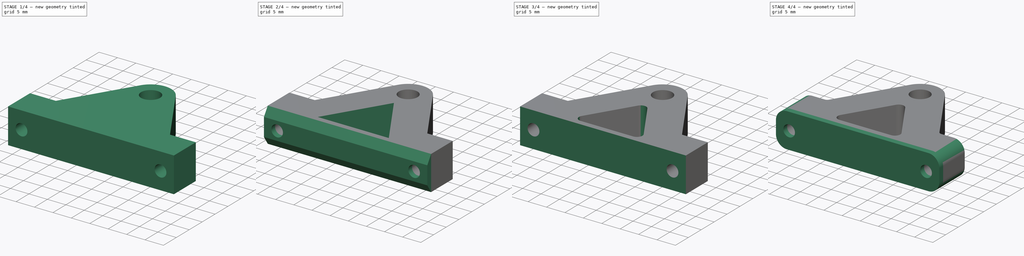
[diagram: build sequence overview — one tinted view per stage of 4, left to right]
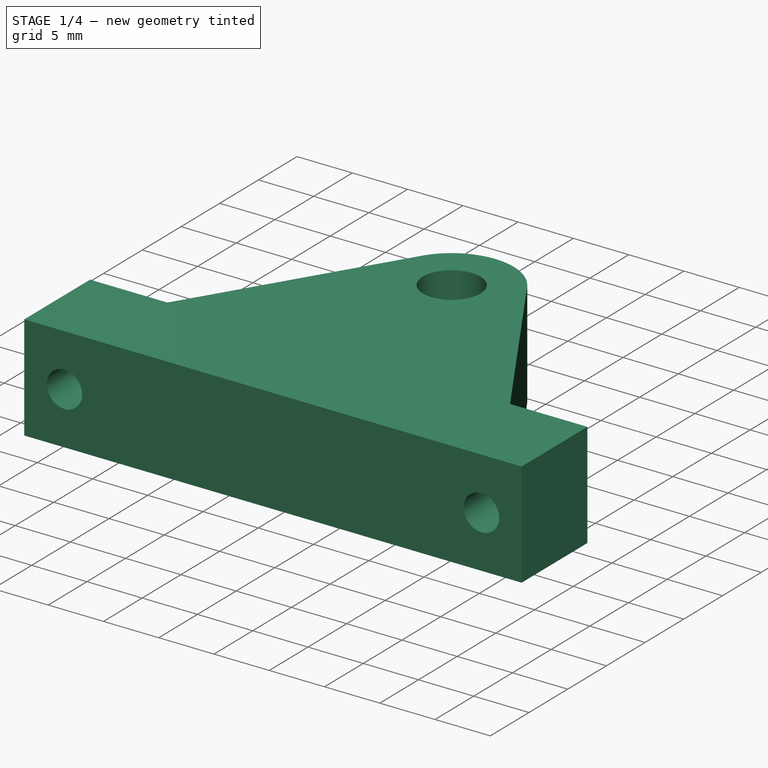
[diagram: stage 1 of 4 — iso view after this stage's code; geometry added in this stage tinted green]
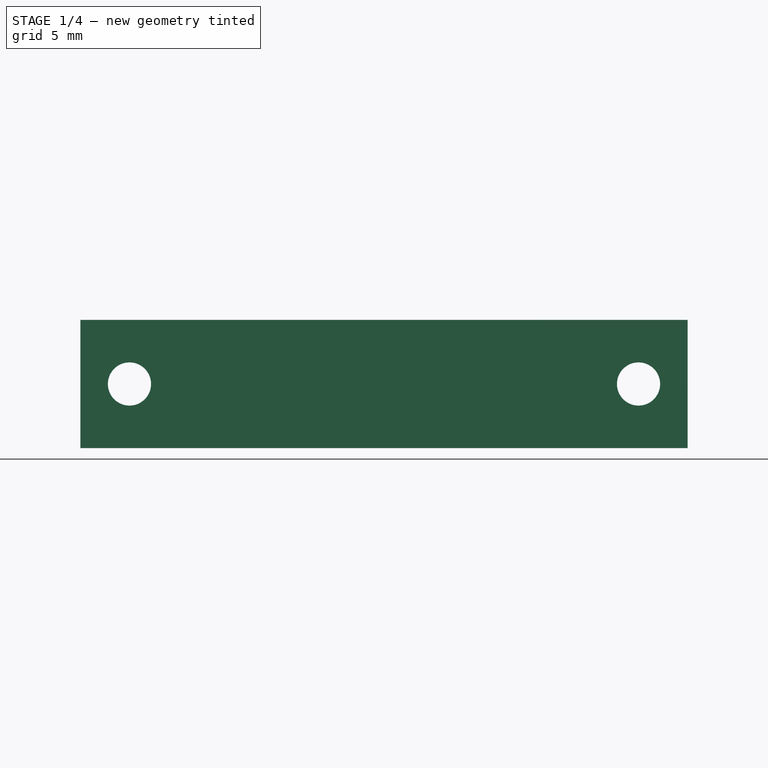
[diagram: stage 1 of 4 — front view after this stage's code; geometry added in this stage tinted green]
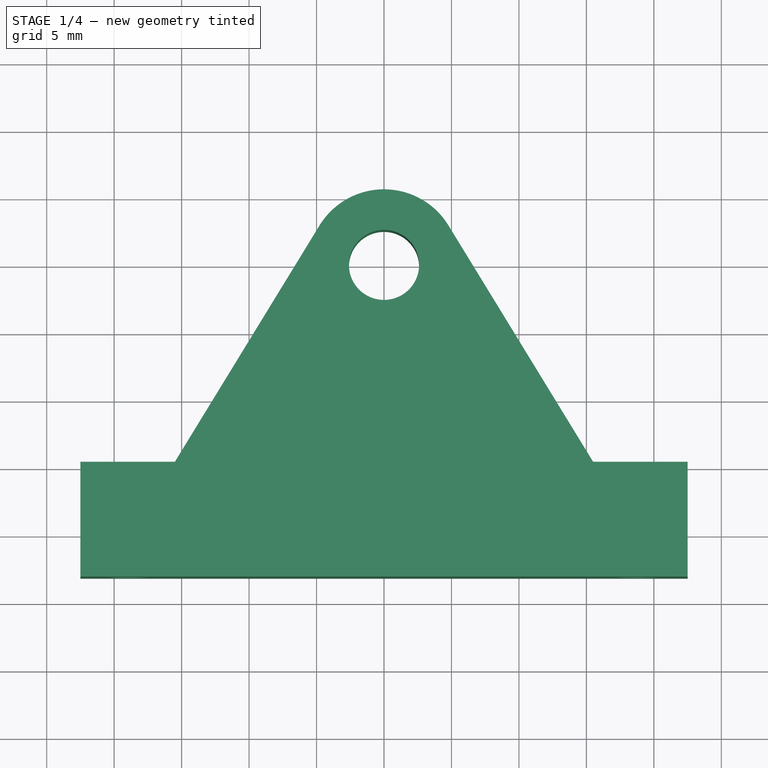
[diagram: stage 1 of 4 — top view after this stage's code; geometry added in this stage tinted green]
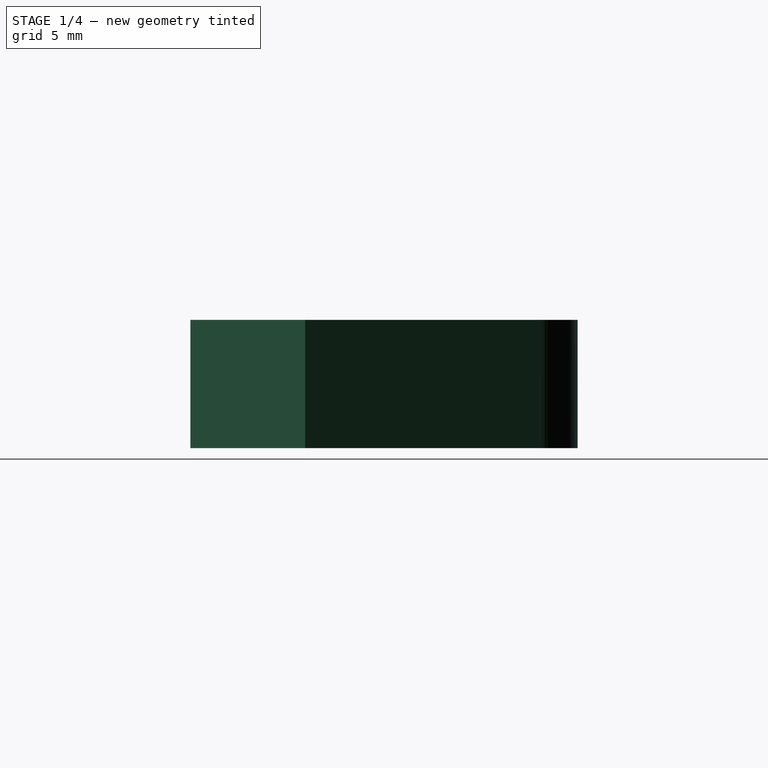
[diagram: stage 1 of 4 — right view after this stage's code; geometry added in this stage tinted green]
FCSTD DOCUMENT  (FreeCAD 0.21R33771 (Git))
Label: suporte-45-P2-M5-horizontal-plano
License: All rights reserved
LicenseURL: http://en.wikipedia.org/wiki/All_rights_reserved
objects: PartDesign::Pocket×5, Sketcher::SketchObject×4, PartDesign::Pad×3, PartDesign::Fillet×3, PartDesign::Body×1
note: 27 computed .brp shape members not serialized (recipe doc carries the construction recipe); baked Part::Feature solids carry a one-line shape summary decoded from their .brp

FEATURE [Sketcher::SketchObject] Sketch
  FullyConstrained = true
  MapMode = 5
  Support = -> [XY_Plane]
  sketch-geometry (13):
    g0: Circle CenterX=0 CenterY=0 CenterZ=0 NormalX=0 NormalY=0 NormalZ=1 AngleXU=0 Radius=2.6
    g1: LineSegment StartX=22.5 StartY=-24.6 StartZ=0 EndX=-22.5 EndY=-24.6 EndZ=0
    g2: Circle CenterX=0 CenterY=0 CenterZ=0 NormalX=0 NormalY=0 NormalZ=1 AngleXU=0 Radius=5.6
    g3: LineSegment StartX=-22.5 StartY=-2.6 StartZ=0 EndX=22.5 EndY=-2.6 EndZ=0
    g4: GeomPoint X=0 Y=5.6 Z=0
    g5: GeomPoint X=0 Y=2.6 Z=0
    g6: ArcOfCircle CenterX=0 CenterY=0 CenterZ=0 NormalX=0 NormalY=0 NormalZ=1 AngleXU=0 Radius=5.6 StartAngle=0.549172 EndAngle=2.59242
    g7: LineSegment StartX=-22.5 StartY=-24.6 StartZ=0 EndX=-22.5 EndY=-14.6 EndZ=0
    g8: LineSegment StartX=-22.5 StartY=-14.6 StartZ=0 EndX=-15.5 EndY=-14.6 EndZ=0
    g9: LineSegment StartX=15.5 StartY=-14.6 StartZ=0 EndX=22.5 EndY=-14.6 EndZ=0
    g10: LineSegment StartX=22.5 StartY=-14.6 StartZ=0 EndX=22.5 EndY=-24.6 EndZ=0
    g11: LineSegment StartX=-15.5 StartY=-14.6 StartZ=0 EndX=-4.77656 EndY=2.92309 EndZ=0
    g12: LineSegment StartX=15.5 StartY=-14.6 StartZ=0 EndX=4.77656 EndY=2.92309 EndZ=0
  constraints (36):
    c: Coincident(g0,g-1)
    c: Diameter(g0) = 5.2
    c: Horizontal(g1)
    c: Coincident(g2,g0)
    c: Tangent(g3,g0)
    c: DistanceY(g1,g3) = 22
    c: DistanceX(g1,g1) = 45
    c: PointOnObject(g4,g-2)
    c: PointOnObject(g5,g0)
    c: PointOnObject(g5,g-2)
    c: PointOnObject(g4,g2)
    c: DistanceY(g5,g4) = 3
    c: Symmetric(g3,g3,g-2)
    c: PointOnObject(g6,g-1)
    c: Coincident(g1,g7)
    c: Vertical(g7)
    c: Coincident(g7,g8)
    c: Horizontal(g8)
    c: Horizontal(g9)
    c: Coincident(g9,g10)
    c: Vertical(g10)
    c: Coincident(g10,g1)
    c: Equal(g8,g9)
    c: DistanceX(g8,g8) = 7
    c: PointOnObject(g6,g-2)
    c: Equal(g6,g2)
    c: Horizontal(g6,g6)
    c: Vertical(g1,g3)
    c: Vertical(g1,g3)
    c: DistanceY(g7,g7) = 10
    c: Coincident(g11,g8)
    c: Coincident(g11,g6)
    c: Coincident(g12,g9)
    c: Coincident(g12,g6)
    c: Equal(g11,g12)
    c: Tangent(g11,g2)
FEATURE [PartDesign::Pad] Pad
  Direction = (0,0,1)
  Length = 9.5
  Length2 = 100
  Profile = -> Sketch
  ReferenceAxis = -> Sketch [N_Axis]
  Type = 0
FEATURE [Sketcher::SketchObject] Sketch001
  ExternalGeometry = -> [Pad]
  FullyConstrained = false
  MapMode = 5
  Placement = pos=(0,-14.6,0) rot=(0,0.707107,0.707107;3.14159rad)
  Support = -> [Pad]
  sketch-geometry (3):
    g0: Circle CenterX=-18.8652 CenterY=4.75 CenterZ=0 NormalX=0 NormalY=0 NormalZ=1 AngleXU=0 Radius=1.6
    g1: Circle CenterX=18.8652 CenterY=4.75 CenterZ=0 NormalX=0 NormalY=0 NormalZ=1 AngleXU=0 Radius=1.6
    g2: LineSegment StartX=-18.8652 StartY=4.75 StartZ=0 EndX=18.8652 EndY=4.75 EndZ=0
  constraints (6):
    c: Symmetric(g0,g1,g-2)
    c: Coincident(g2,g0)
    c: Coincident(g2,g1)
    c: Symmetric(g-3,g-3,g2)
    c: Equal(g1,g0)
    c: Diameter(g1) = 3.2
FEATURE [PartDesign::Pocket] Pocket
  BaseFeature = -> Pad
  Direction = (0,-1,2e-16)
  Length = 5
  Length2 = 5
  Profile = -> Sketch001
  ReferenceAxis = -> Sketch001 [N_Axis]
  Type = 1
FEATURE [PartDesign::Pocket] Pocket001
  BaseFeature = -> Pocket
  Direction = (0,1,0)
  Length = 1.5
  Length2 = 5
  Profile = -> Pocket [Face8]
  Type = 0
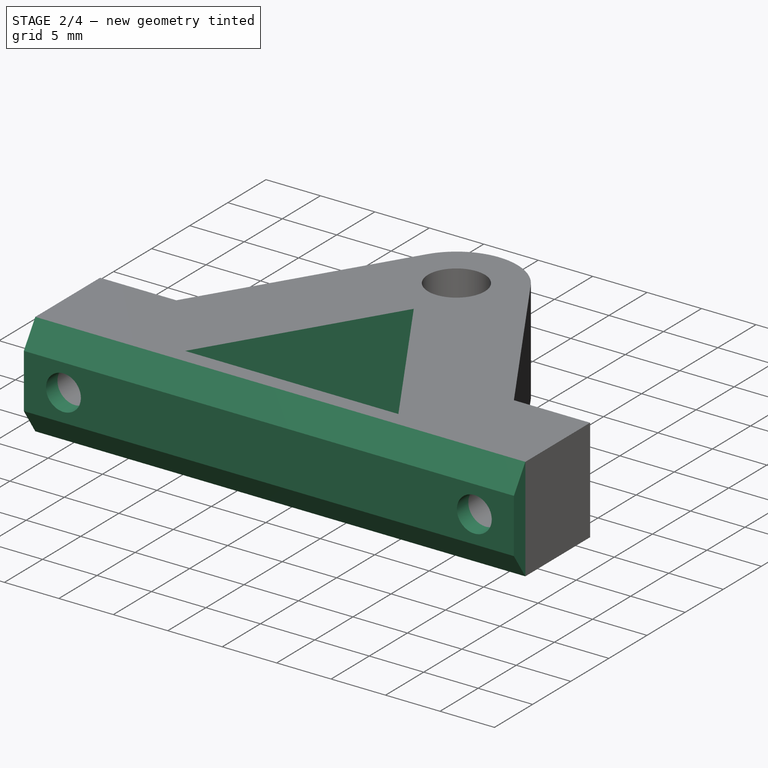
[diagram: stage 2 of 4 — iso view after this stage's code; geometry added in this stage tinted green]
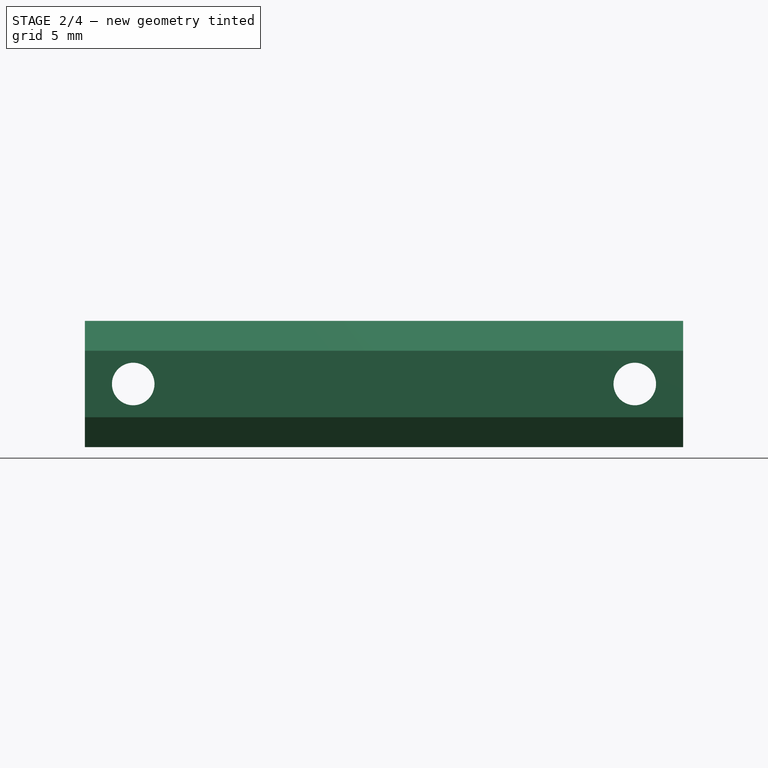
[diagram: stage 2 of 4 — front view after this stage's code; geometry added in this stage tinted green]
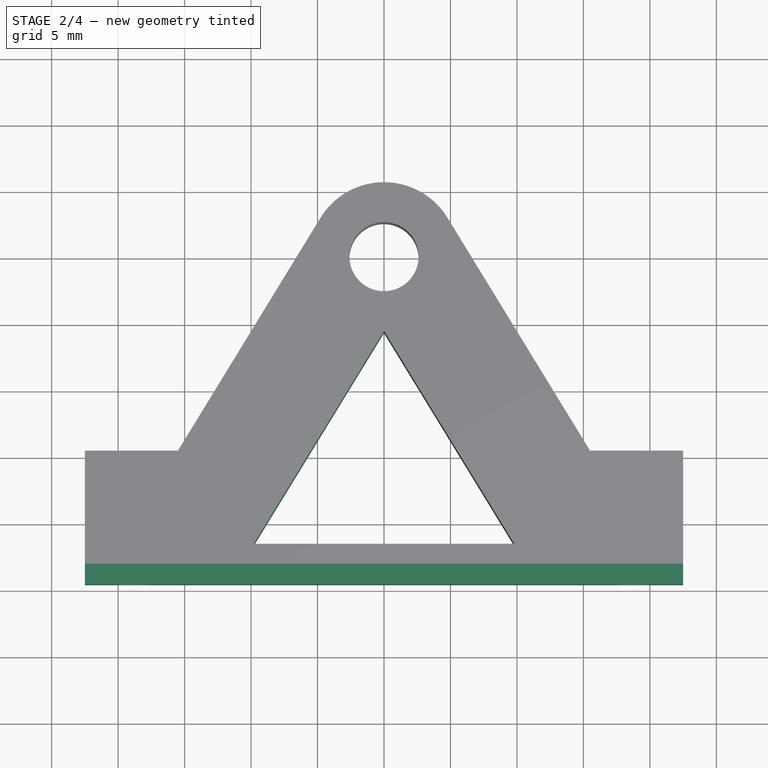
[diagram: stage 2 of 4 — top view after this stage's code; geometry added in this stage tinted green]
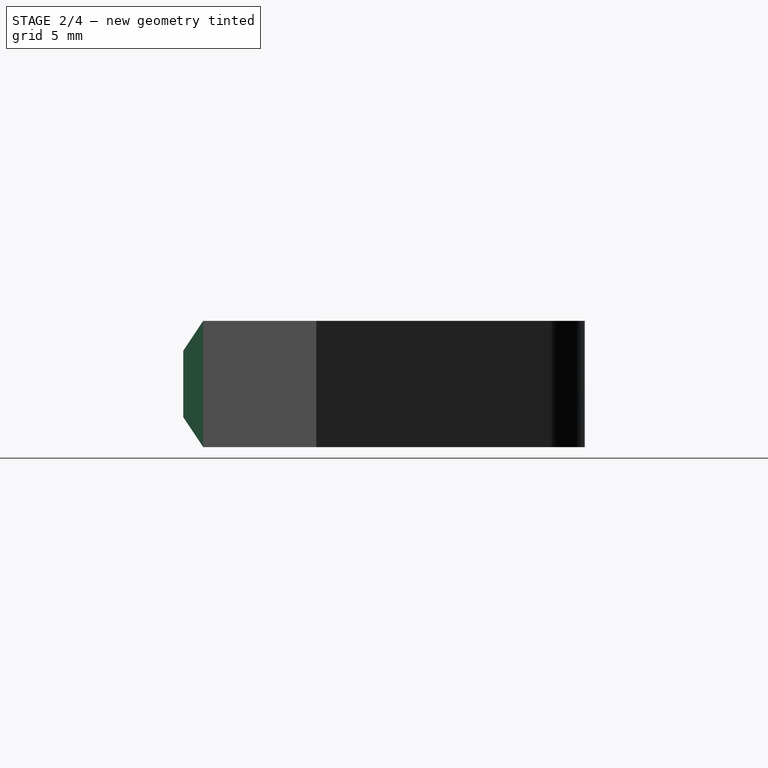
[diagram: stage 2 of 4 — right view after this stage's code; geometry added in this stage tinted green]
FEATURE [Sketcher::SketchObject] Sketch002
  ExternalGeometry = -> [Pocket001]
  FullyConstrained = true
  MapMode = 5
  Placement = pos=(-22.5,0,0) rot=(0.57735,-0.57735,-0.57735;2.0944rad)
  Support = -> [Pocket001]
  sketch-geometry (4):
    g0: LineSegment StartX=23.1 StartY=9.5 StartZ=0 EndX=23.1 EndY=0 EndZ=0
    g1: LineSegment StartX=23.1 StartY=0 StartZ=0 EndX=24.6 EndY=2.25 EndZ=0
    g2: LineSegment StartX=24.6 StartY=2.25 StartZ=0 EndX=24.6 EndY=7.25 EndZ=0
    g3: LineSegment StartX=24.6 StartY=7.25 StartZ=0 EndX=23.1 EndY=9.5 EndZ=0
  constraints (10):
    c: Coincident(g0,g1)
    c: Coincident(g1,g2)
    c: Vertical(g2)
    c: Coincident(g2,g3)
    c: Coincident(g3,g0)
    c: Coincident(g0,g-3)
    c: Coincident(g0,g-3)
    c: Equal(g3,g1)
    c: DistanceX(g0,g2) = 1.5
    c: DistanceY(g2,g2) = 5
FEATURE [PartDesign::Pad] Pad001
  BaseFeature = -> Pocket001
  Direction = (-1,0,0)
  Length = 10
  Length2 = 10
  Profile = -> Sketch002
  ReferenceAxis = -> Sketch002 [N_Axis]
  Type = 3
  UpToFace = -> Pocket001 [Face5]
FEATURE [PartDesign::Pocket] Pocket002
  BaseFeature = -> Pad001
  Direction = (0,-1,0)
  Length = 5
  Length2 = 5
  Profile = -> Pad001 [Face15,Face19]
  Type = 1
FEATURE [Sketcher::SketchObject] Sketch003
  ExternalGeometry = -> [Pocket002]
  FullyConstrained = true
  MapMode = 5
  Placement = pos=(0,0,0) rot=(1,0,0;3.14159rad)
  Support = -> [Pocket002]
  sketch-geometry (4):
    g0: LineSegment StartX=0 StartY=5.6 StartZ=0 EndX=-9.79137 EndY=21.6 EndZ=0
    g1: LineSegment StartX=-9.79137 StartY=21.6 StartZ=0 EndX=9.79137 EndY=21.6 EndZ=0
    g2: LineSegment StartX=9.79137 StartY=21.6 StartZ=0 EndX=0 EndY=5.6 EndZ=0
    g3: GeomPoint X=0 Y=2.6 Z=0
  constraints (10):
    c: PointOnObject(g0,g-2)
    c: Coincident(g0,g1)
    c: Coincident(g1,g2)
    c: Coincident(g2,g0)
    c: Symmetric(g0,g1,g-2)
    c: PointOnObject(g3,g-5)
    c: PointOnObject(g3,g-2)
    c: DistanceY(g3,g0) = 3
    c: Parallel(g-4,g0)
    c: DistanceY(g0,g-6) = 3
FEATURE [PartDesign::Pocket] Pocket003
  BaseFeature = -> Pocket002
  Direction = (0,0,1)
  Length = 5
  Length2 = 5
  Profile = -> Sketch003
  ReferenceAxis = -> Sketch003 [N_Axis]
  Type = 1
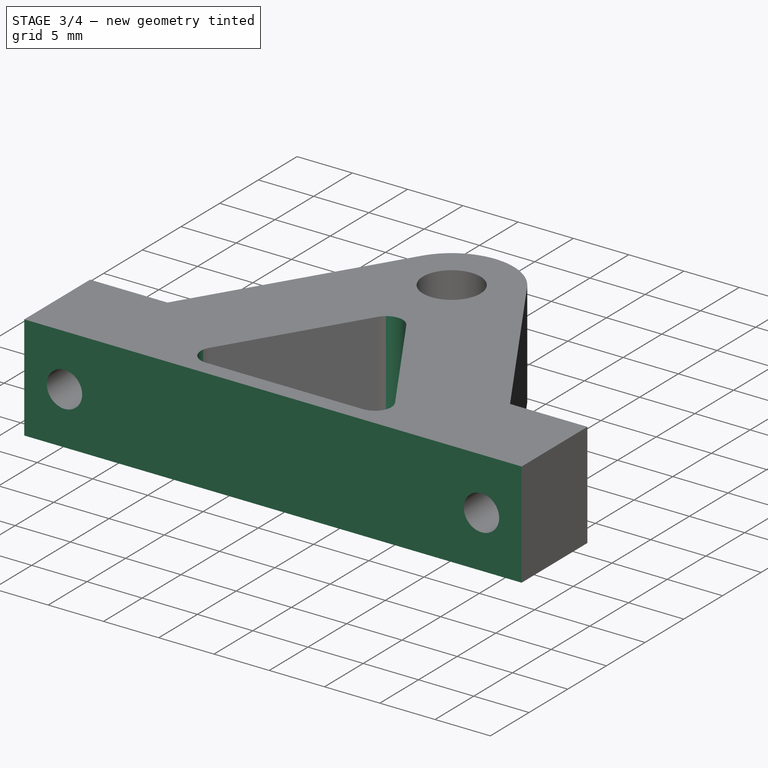
[diagram: stage 3 of 4 — iso view after this stage's code; geometry added in this stage tinted green]
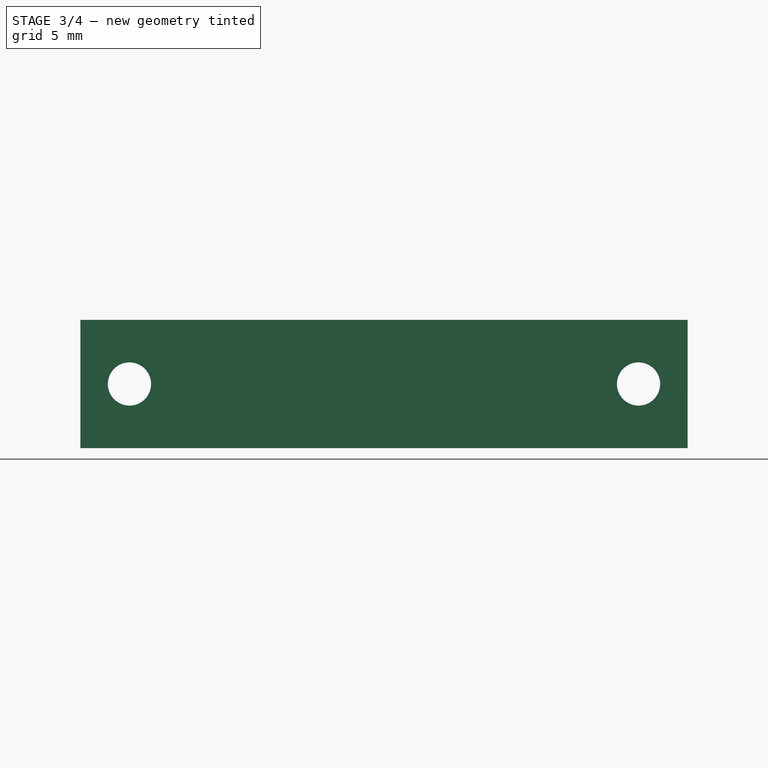
[diagram: stage 3 of 4 — front view after this stage's code; geometry added in this stage tinted green]
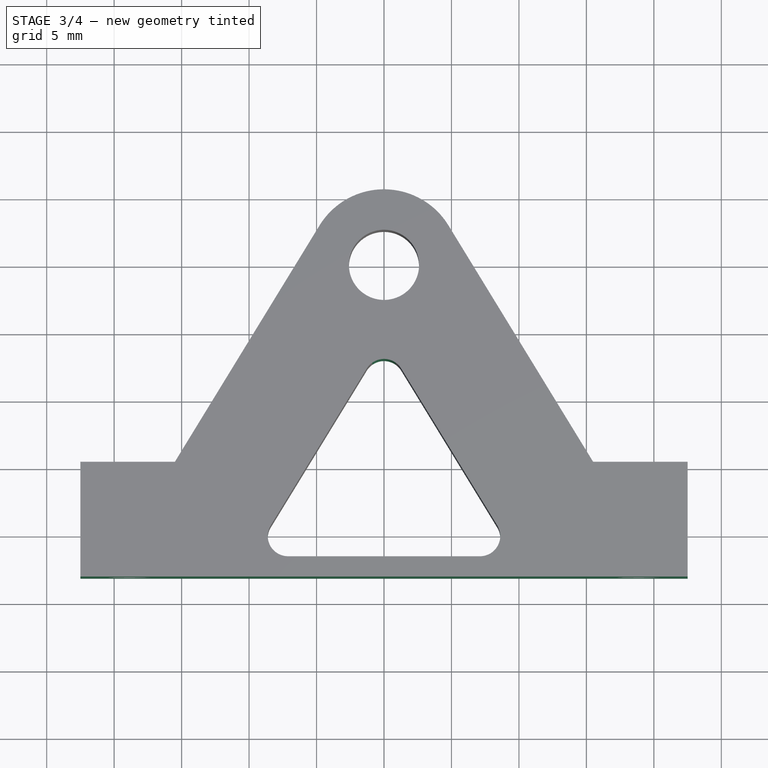
[diagram: stage 3 of 4 — top view after this stage's code; geometry added in this stage tinted green]
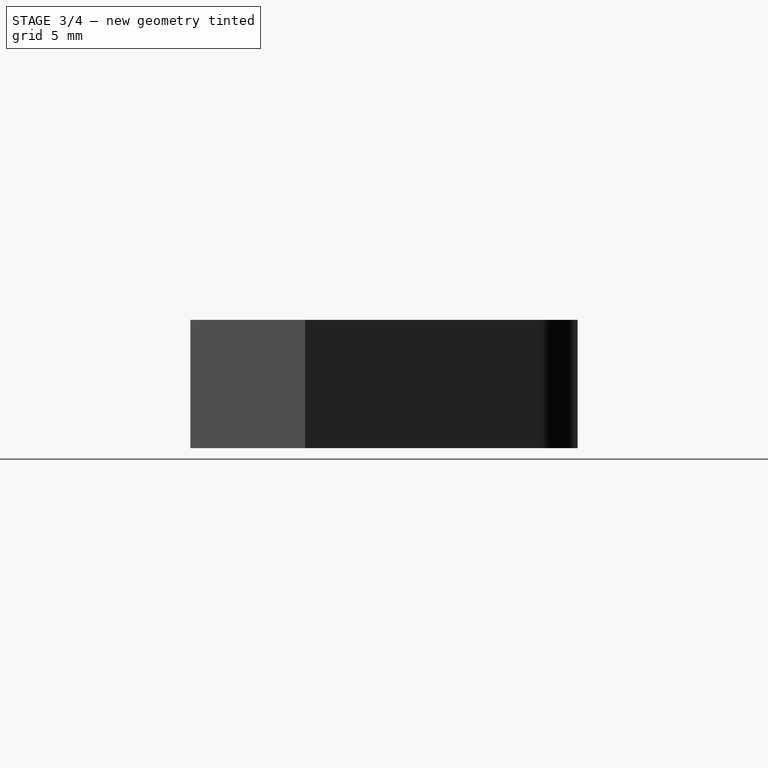
[diagram: stage 3 of 4 — right view after this stage's code; geometry added in this stage tinted green]
FEATURE [PartDesign::Fillet] Fillet
  Base = -> Pocket003 [Edge42,Edge40,Edge41]
  BaseFeature = -> Pocket003
  Radius = 1.5
  SupportTransform = false
  UseAllEdges = false
FEATURE [PartDesign::Pocket] Pocket004
  BaseFeature = -> Fillet
  Direction = (-1,0,0)
  Length = 5
  Length2 = 5
  Profile = -> Fillet [Face19]
  Type = 1
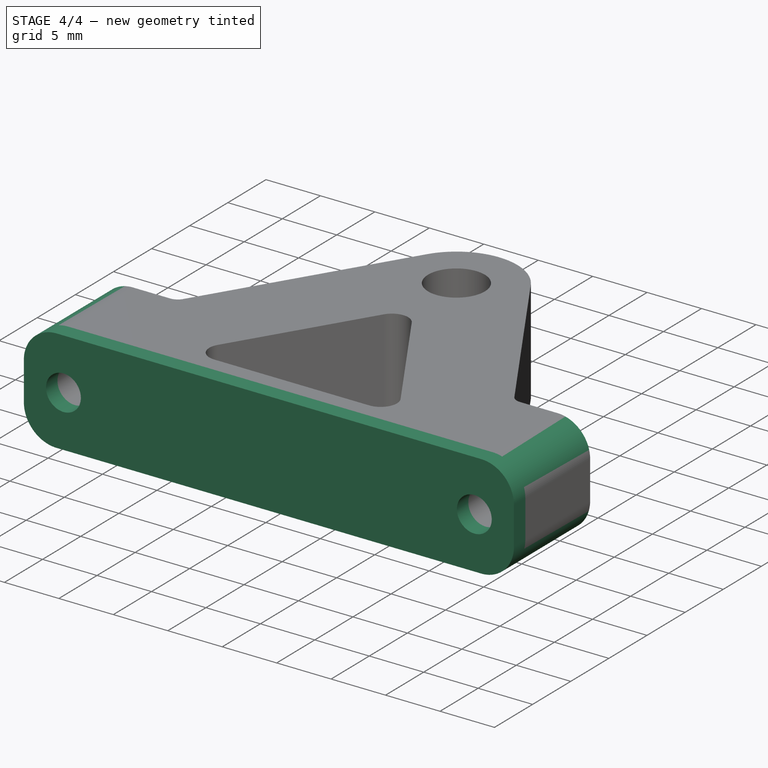
[diagram: stage 4 of 4 — iso view after this stage's code; geometry added in this stage tinted green]
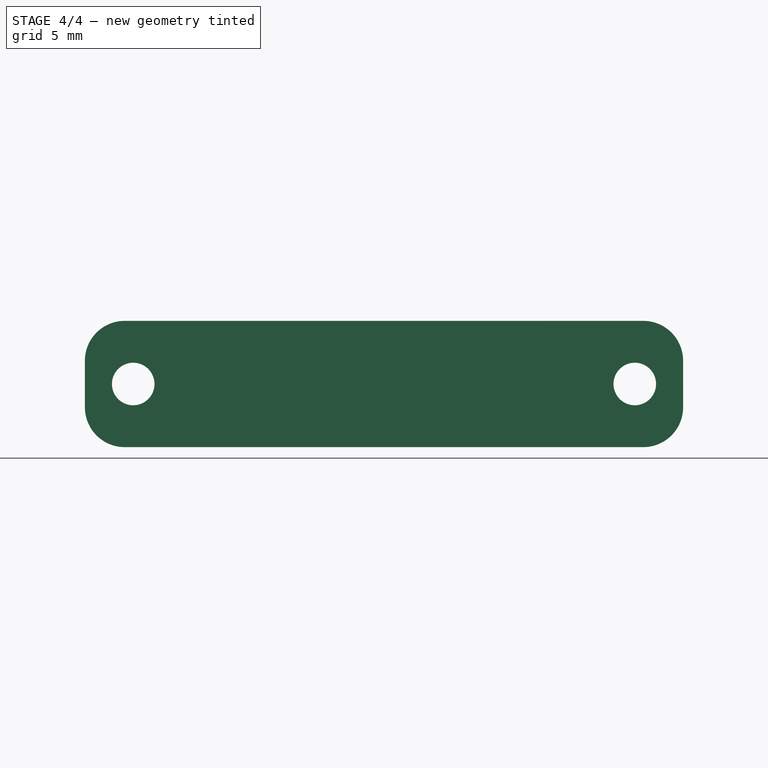
[diagram: stage 4 of 4 — front view after this stage's code; geometry added in this stage tinted green]
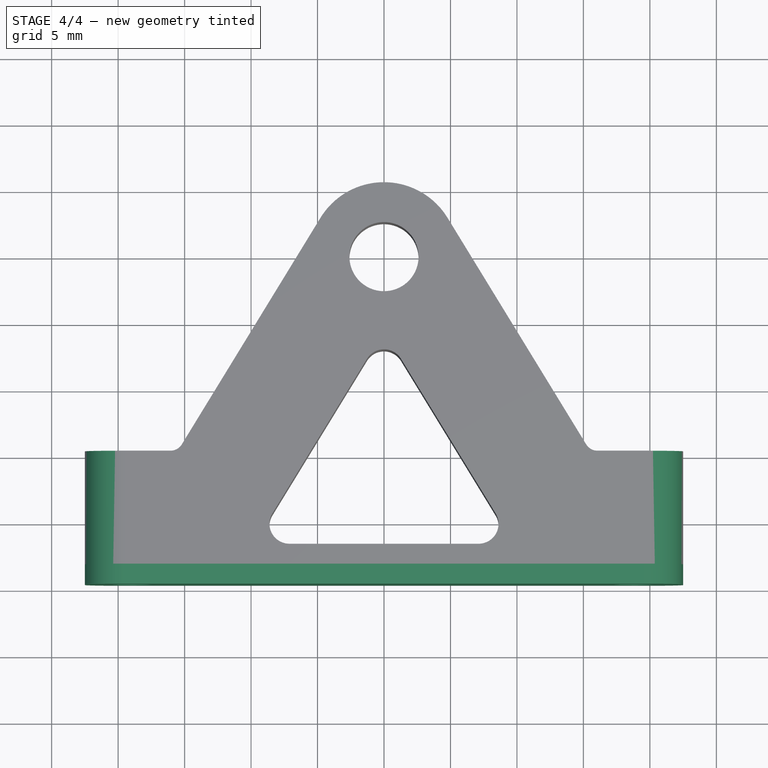
[diagram: stage 4 of 4 — top view after this stage's code; geometry added in this stage tinted green]
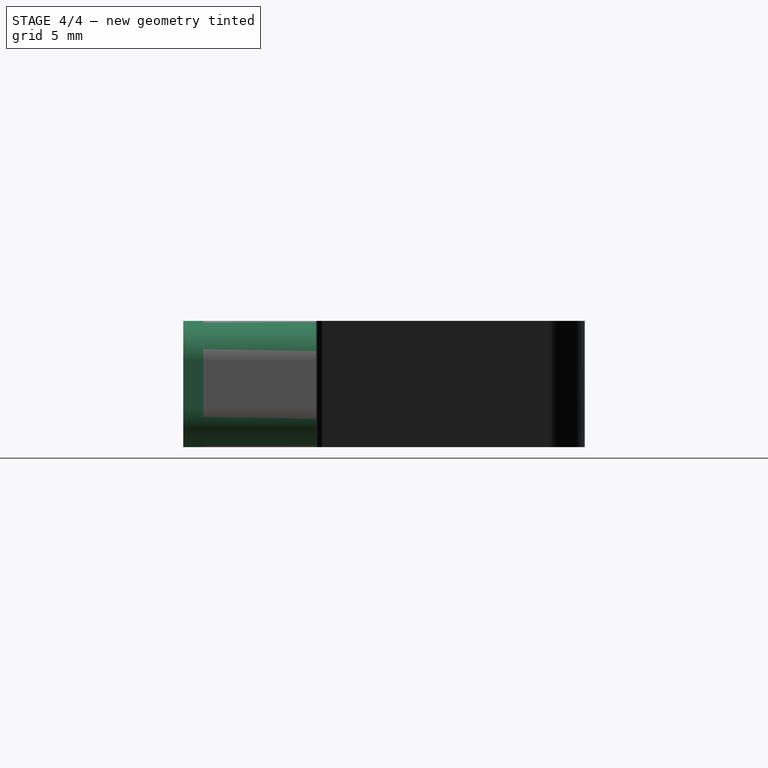
[diagram: stage 4 of 4 — right view after this stage's code; geometry added in this stage tinted green]
FEATURE [PartDesign::Pad] Pad002
  BaseFeature = -> Pocket004
  Direction = (0,-1,0)
  Length = 1.5
  Length2 = 10
  Profile = -> Pocket004 [Face12]
  Type = 0
FEATURE [PartDesign::Fillet] Fillet001
  Base = -> Pad002 [Edge35,Edge9,Edge44,Edge13]
  BaseFeature = -> Pad002
  Radius = 3
  SupportTransform = false
  UseAllEdges = false
FEATURE [PartDesign::Fillet] Fillet002
  Base = -> Fillet001 [Edge17,Edge34]
  BaseFeature = -> Fillet001
  Radius = 1
  SupportTransform = false
  UseAllEdges = false
FEATURE [PartDesign::Body] Body
  Group = -> [Sketch,Pad,Sketch001,Pocket,Pocket001,Sketch002,Pad001,Pocket002,Sketch003,Pocket003,Fillet,Pocket004,Pad002,Fillet001,Fillet002]
  Origin = -> Origin
  Tip = -> Fillet002
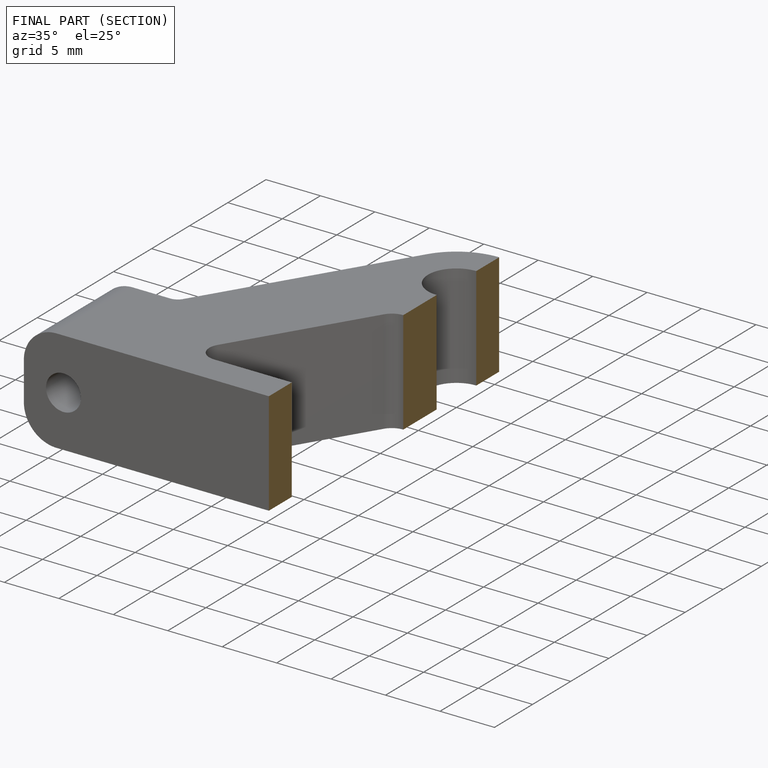
[diagram: finished part — half-section view (interior)]
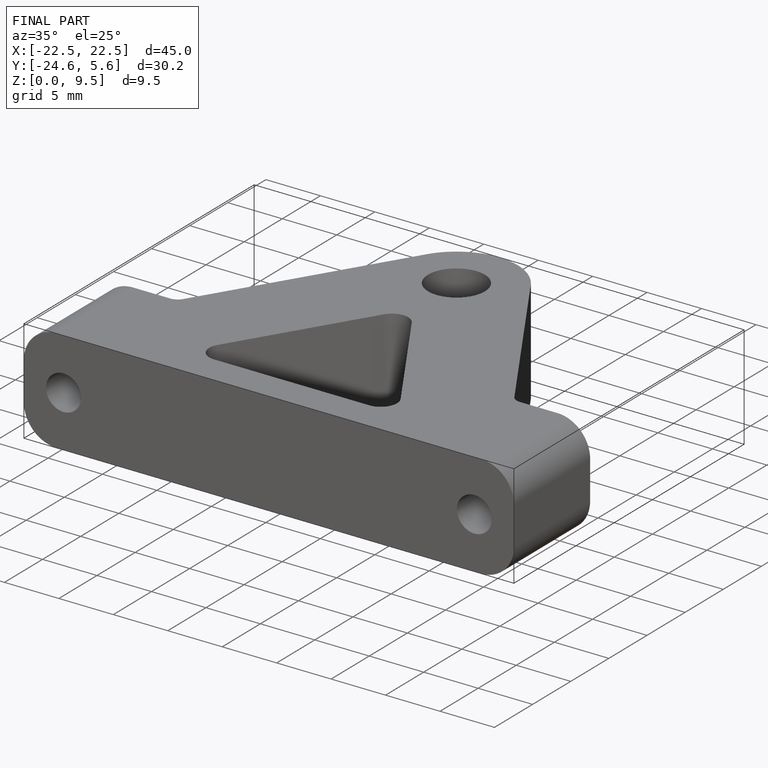
[diagram: finished part — iso view with bounding-box wireframe]
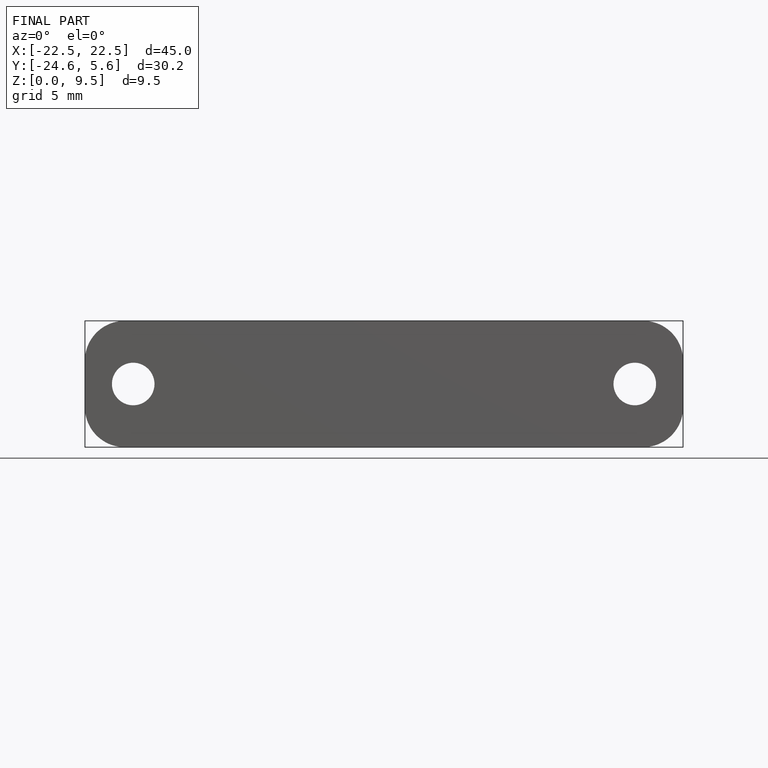
[diagram: finished part — front view with bounding-box wireframe]
